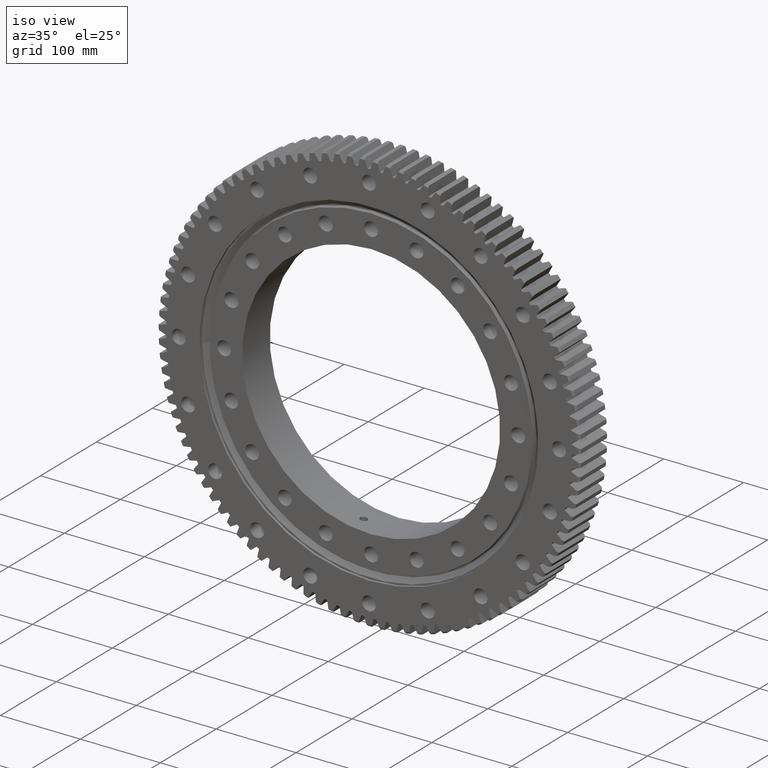
[diagram: clean part render]
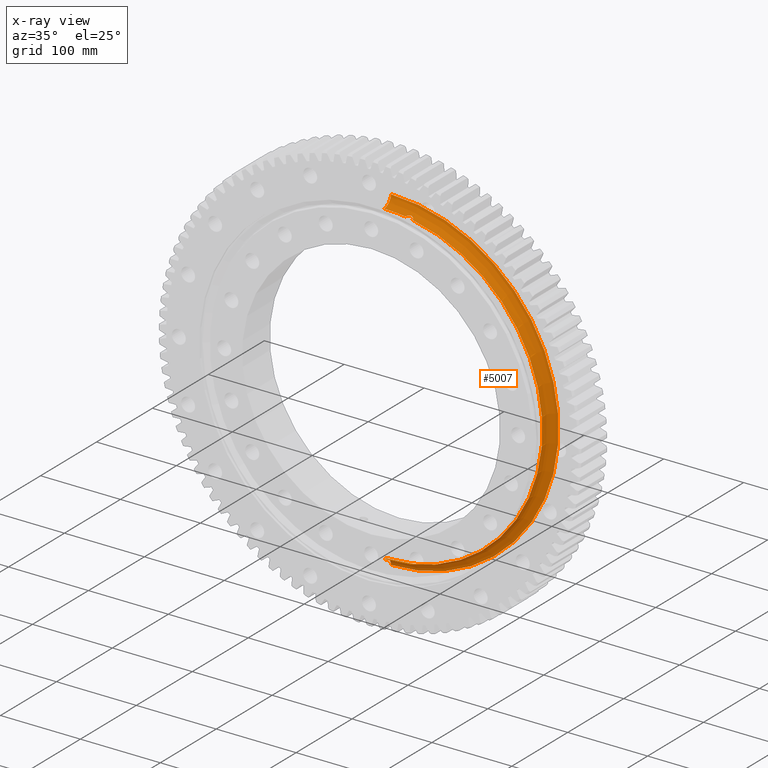
[diagram: x-ray — body ghosted, one internal face saturated and labeled with its STEP entity id]
A machine part, iso view, then the same camera in x-ray: the body is ghosted and one INTERNAL B-rep face — a face not visible from any outside direction — is saturated and labeled: STEP entity #5007.
In plain terms, the highlighted toroidal blend (fillet) surface has major radius 211 mm and minor (blend) radius 12.7 mm.
Its self-contained STEP definition (entity closure, byte-faithful):
#129 = CARTESIAN_POINT ( 'NONE',  ( 33.81294800594636700, 3.574914469359076600, 195.9160362210338300 ) ) ;
#574 = CARTESIAN_POINT ( 'NONE',  ( 34.89797724294987800, 2.264590469521143800, 195.4094252381076400 ) ) ;
#1397 = CARTESIAN_POINT ( 'NONE',  ( 33.10038564505497800, 4.040659823844227300, 196.1867944113675200 ) ) ;
#1770 = CARTESIAN_POINT ( 'NONE',  ( 26.59989146291633200, 0.5976971174452460100, 196.5187111709360600 ) ) ;
#1845 = ORIENTED_EDGE ( 'NONE', *, *, #22757, .F. ) ;
#1891 = CARTESIAN_POINT ( 'NONE',  ( 35.45756353400315700, 0.2961849743191199400, 195.1042059727578000 ) ) ;
#2205 = ORIENTED_EDGE ( 'NONE', *, *, #8398, .F. ) ;
#2896 = EDGE_CURVE ( 'NONE', #15817, #22019, #10937, .T. ) ;
#3333 = CARTESIAN_POINT ( 'NONE',  ( 33.35123310732033300, 3.899704260477318200, 196.0966059904936000 ) ) ;
#3427 = CARTESIAN_POINT ( 'NONE',  ( 32.57587820549647300, 4.267359273443898500, 196.3541074061532800 ) ) ;
#3451 = CARTESIAN_POINT ( 'NONE',  ( 31.29493508727666700, 4.500030177264674700, 196.6494605972468200 ) ) ;
#3712 = CIRCLE ( 'NONE', #18239, 209.7300000000000200 ) ;
#3765 = CIRCLE ( 'NONE', #25773, 198.2999999999999300 ) ;
#3920 = DIRECTION ( 'NONE',  ( -0.0000000000000000000, 1.000000000000000000, -2.727064569436389700E-017 ) ) ;
#4586 = CARTESIAN_POINT ( 'NONE',  ( 35.02994472854557300, 2.002192306558753900, 195.3397712585782000 ) ) ;
#4777 = AXIS2_PLACEMENT_3D ( 'NONE', #15349, #22714, #25465 ) ;
#5007 = ADVANCED_FACE ( 'NONE', ( #15989 ), #5081, .F. ) ;
#5081 = TOROIDAL_SURFACE ( 'NONE', #4777, 211.0000000000000000, 12.70000000000006300 ) ;
#5431 = CARTESIAN_POINT ( 'NONE',  ( 31.87723809609684600, 4.441192239053153300, 196.5334476008901800 ) ) ;
#5893 = EDGE_CURVE ( 'NONE', #11311, #20377, #25229, .T. ) ;
#6021 = ORIENTED_EDGE ( 'NONE', *, *, #7341, .T. ) ;
#6459 = DIRECTION ( 'NONE',  ( -0.0000000000000000000, 1.000000000000000000, -2.727064569436389700E-017 ) ) ;
#7230 = CARTESIAN_POINT ( 'NONE',  ( 35.32122200942414700, 1.177393049261945800, 195.1811316660315800 ) ) ;
#7341 = EDGE_CURVE ( 'NONE', #20377, #15817, #3765, .T. ) ;
#7413 = CARTESIAN_POINT ( 'NONE',  ( 26.56836846863698700, 3.017151544373369100E-009, 196.5121161580493900 ) ) ;
#7501 = ORIENTED_EDGE ( 'NONE', *, *, #5893, .T. ) ;
#7753 = CARTESIAN_POINT ( 'NONE',  ( 29.69414190738266500, 4.266835400920927900, 196.8103390164637300 ) ) ;
#8147 = CARTESIAN_POINT ( 'NONE',  ( 34.41998760400833400, 2.973530706076058300, 195.6465833440394400 ) ) ;
#8162 = CARTESIAN_POINT ( 'NONE',  ( 26.56836846863698700, 3.017151544373369100E-009, 196.5121161580493900 ) ) ;
#8398 = EDGE_CURVE ( 'NONE', #11311, #10884, #3712, .T. ) ;
#8840 = CARTESIAN_POINT ( 'NONE',  ( 32.30316598158539400, 4.353523767589997800, 196.4311362323498400 ) ) ;
#9733 = CARTESIAN_POINT ( 'NONE',  ( 28.15339417550336900, 3.391009348577175100, 196.7553395637224000 ) ) ;
#9933 = CARTESIAN_POINT ( 'NONE',  ( 27.05057968184718900, 2.007794432860081200, 196.6044960123617200 ) ) ;
#9936 = DIRECTION ( 'NONE',  ( -0.0000000000000000000, 1.000000000000000000, -2.727064569436389700E-017 ) ) ;
#10336 = CARTESIAN_POINT ( 'NONE',  ( 29.97698630896106300, 4.353262532034067400, 196.7994625712400700 ) ) ;
#10742 = DIRECTION ( 'NONE',  ( -1.000000000000000000, 0.0000000000000000000, 0.0000000000000000000 ) ) ;
#10833 = CARTESIAN_POINT ( 'NONE',  ( 35.42968902964773300, 0.5973906577208935000, 195.1201814689984000 ) ) ;
#10884 = VERTEX_POINT ( 'NONE', #15844 ) ;
#10937 = B_SPLINE_CURVE_WITH_KNOTS ( 'NONE', 3,
 ( #7413, #19410, #1770, #25671, #18396, #9933, #17003, #17869, #14187, #9733, #20562, #15165, #10993, #7753, #10336, #15724, #11773, #3451, #13643, #23174, #5431, #8840, #3427, #1397, #3333, #129, #17549, #8147, #17349, #574, #4586, #16289, #7230, #10833, #1891, #22239 ),
 .UNSPECIFIED., .F., .F.,
 ( 4, 2, 2, 2, 2, 2, 2, 2, 2, 2, 2, 2, 2, 2, 2, 2, 2, 4 ),
 ( 0.002640105307984561700, 0.003527858475935750900, 0.004415611643886940100, 0.005303364811838129400, 0.006191117979789319400, 0.007078871147740509500, 0.007966624315691698800, 0.008854377483642889700, 0.009742130651594078900, 0.01018600723556966800, 0.01062988381954526100, 0.01151763698749646100, 0.01240539015544766200, 0.01329314332339886200, 0.01418089649135006100, 0.01506864965930126100, 0.01595640282725246200, 0.01684415599520366200 ),
 .UNSPECIFIED. ) ;
#10993 = CARTESIAN_POINT ( 'NONE',  ( 29.14760011797434600, 4.041912773928484800, 196.8133156461509000 ) ) ;
#11145 = ORIENTED_EDGE ( 'NONE', *, *, #2896, .T. ) ;
#11311 = VERTEX_POINT ( 'NONE', #19957 ) ;
#11574 = CARTESIAN_POINT ( 'NONE',  ( 2.584004746200915100E-014, -1.269300014541801000E-014, -211.0000000000000000 ) ) ;
#11773 = CARTESIAN_POINT ( 'NONE',  ( 30.85695624661358500, 4.499939371539498200, 196.7187927165904900 ) ) ;
#11883 = EDGE_LOOP ( 'NONE', ( #7501, #6021, #11145, #15323, #1845, #2205 ) ) ;
#13628 = DIRECTION ( 'NONE',  ( 1.224646799147352500E-016, 0.0000000000000000000, -1.000000000000000000 ) ) ;
#13632 = CARTESIAN_POINT ( 'NONE',  ( 2.428474602709200400E-014, -8.494195338824377100E-015, -198.2999999999999300 ) ) ;
#13643 = CARTESIAN_POINT ( 'NONE',  ( 31.44066484460693900, 4.492796080709337200, 196.6234301318739300 ) ) ;
#14187 = CARTESIAN_POINT ( 'NONE',  ( 27.72822155955996200, 2.979301383738861600, 196.7079889465915700 ) ) ;
#15165 = CARTESIAN_POINT ( 'NONE',  ( 28.88120842113527700, 3.901471411892637700, 196.8051908629767900 ) ) ;
#15202 = CIRCLE ( 'NONE', #23117, 198.2999999999999300 ) ;
#15323 = ORIENTED_EDGE ( 'NONE', *, *, #23070, .T. ) ;
#15349 = CARTESIAN_POINT ( 'NONE',  ( 0.0000000000000000000, -6.938893903907228400E-015, 0.0000000000000000000 ) ) ;
#15724 = CARTESIAN_POINT ( 'NONE',  ( 30.56291855014643800, 4.470836055064142800, 196.7534002085116100 ) ) ;
#15817 = VERTEX_POINT ( 'NONE', #8162 ) ;
#15844 = CARTESIAN_POINT ( 'NONE',  ( 2.568451731851744500E-014, 12.63634045125413000, -209.7300000000000500 ) ) ;
#15989 = FACE_OUTER_BOUND ( 'NONE', #11883, .T. ) ;
#16199 = CIRCLE ( 'NONE', #26367, 12.70000000000007200 ) ;
#16289 = CARTESIAN_POINT ( 'NONE',  ( 35.24126803152426400, 1.458247766633025400, 195.2257452346858000 ) ) ;
#16823 = CARTESIAN_POINT ( 'NONE',  ( 35.45756353399319500, 3.046529935072190600E-009, 195.1042059726873400 ) ) ;
#17003 = CARTESIAN_POINT ( 'NONE',  ( 27.19532941899625600, 2.265401512493029600, 196.6295535076423600 ) ) ;
#17349 = CARTESIAN_POINT ( 'NONE',  ( 34.59355315995204400, 2.748592682652158700, 195.5625049935043800 ) ) ;
#17549 = CARTESIAN_POINT ( 'NONE',  ( 34.02743102290048000, 3.389230115052121600, 195.8244156196175800 ) ) ;
#17869 = CARTESIAN_POINT ( 'NONE',  ( 27.53300250619572500, 2.750272373095469500, 196.6811774326543200 ) ) ;
#18239 = AXIS2_PLACEMENT_3D ( 'NONE', #22211, #9936, #24268 ) ;
#18249 = DIRECTION ( 'NONE',  ( 0.0000000000000000000, 2.727064569436389700E-017, 1.000000000000000000 ) ) ;
#18314 = CARTESIAN_POINT ( 'NONE',  ( 0.0000000000000000000, -8.494195338824373900E-015, 4.241407437956127000E-032 ) ) ;
#18346 = AXIS2_PLACEMENT_3D ( 'NONE', #23025, #10742, #25079 ) ;
#18396 = CARTESIAN_POINT ( 'NONE',  ( 26.81208757387803100, 1.459959444606034000, 196.5609630830055300 ) ) ;
#18725 = CARTESIAN_POINT ( 'NONE',  ( 0.0000000000000000000, -8.494195338824373900E-015, 4.241407437956127000E-032 ) ) ;
#19410 = CARTESIAN_POINT ( 'NONE',  ( 26.56836846864727500, 0.2971636617524757700, 196.5121161581192000 ) ) ;
#19957 = CARTESIAN_POINT ( 'NONE',  ( 0.0000000000000000000, 12.63634045125413900, 209.7300000000000200 ) ) ;
#20328 = VERTEX_POINT ( 'NONE', #13632 ) ;
#20377 = VERTEX_POINT ( 'NONE', #26186 ) ;
#20562 = CARTESIAN_POINT ( 'NONE',  ( 28.38389692977538900, 3.575422769324682700, 196.7760637729143700 ) ) ;
#20812 = DIRECTION ( 'NONE',  ( 0.0000000000000000000, 2.727064569436389700E-017, 1.000000000000000000 ) ) ;
#22019 = VERTEX_POINT ( 'NONE', #16823 ) ;
#22211 = CARTESIAN_POINT ( 'NONE',  ( 0.0000000000000000000, 12.63634045125413300, -1.190784926899421400E-015 ) ) ;
#22239 = CARTESIAN_POINT ( 'NONE',  ( 35.45756353399319500, 3.046529935072190600E-009, 195.1042059726873400 ) ) ;
#22714 = DIRECTION ( 'NONE',  ( -0.0000000000000000000, 1.000000000000000000, -2.727064569436389700E-017 ) ) ;
#22757 = EDGE_CURVE ( 'NONE', #10884, #20328, #16199, .T. ) ;
#23025 = CARTESIAN_POINT ( 'NONE',  ( 0.0000000000000000000, -1.184787662396446700E-015, 211.0000000000000000 ) ) ;
#23070 = EDGE_CURVE ( 'NONE', #22019, #20328, #15202, .T. ) ;
#23117 = AXIS2_PLACEMENT_3D ( 'NONE', #18725, #6459, #20812 ) ;
#23174 = CARTESIAN_POINT ( 'NONE',  ( 31.73160037700392500, 4.463465986859938900, 196.5654929168441600 ) ) ;
#24268 = DIRECTION ( 'NONE',  ( 0.0000000000000000000, 2.481366722896305200E-017, 1.000000000000000000 ) ) ;
#25079 = DIRECTION ( 'NONE',  ( 0.0000000000000000000, 0.0000000000000000000, 1.000000000000000000 ) ) ;
#25229 = CIRCLE ( 'NONE', #18346, 12.70000000000007200 ) ;
#25465 = DIRECTION ( 'NONE',  ( 0.0000000000000000000, 2.727064569436389700E-017, 1.000000000000000000 ) ) ;
#25671 = CARTESIAN_POINT ( 'NONE',  ( 26.72166375563112300, 1.176760932400414500, 196.5431161570288600 ) ) ;
#25773 = AXIS2_PLACEMENT_3D ( 'NONE', #18314, #3920, #18249 ) ;
#25916 = DIRECTION ( 'NONE',  ( 1.000000000000000000, 3.339690896028429500E-033, 1.224646799147353200E-016 ) ) ;
#26186 = CARTESIAN_POINT ( 'NONE',  ( 0.0000000000000000000, -8.494195338824370800E-015, 198.2999999999999300 ) ) ;
#26367 = AXIS2_PLACEMENT_3D ( 'NONE', #11574, #25916, #13628 ) ;